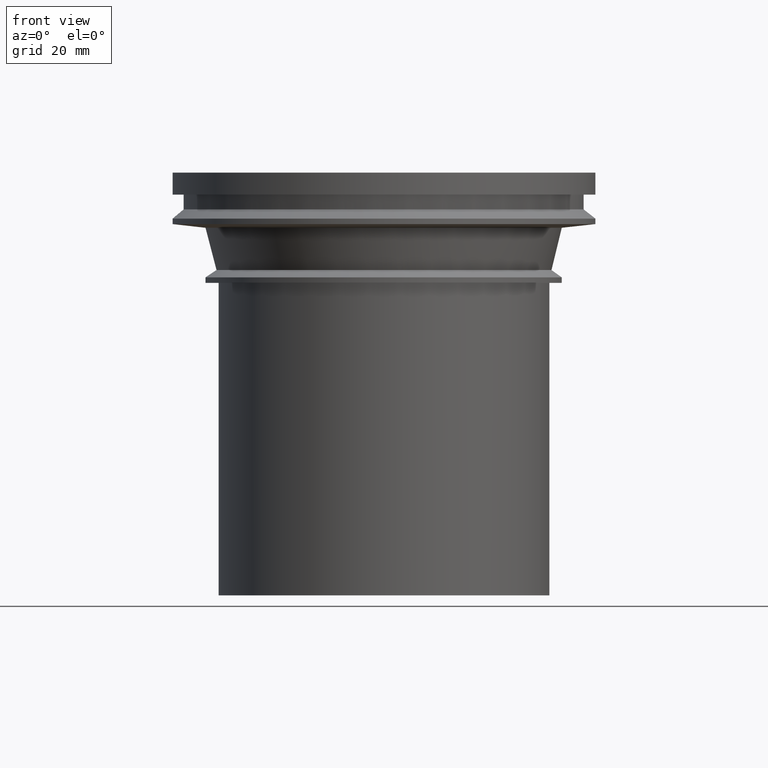
[diagram: clean part render]
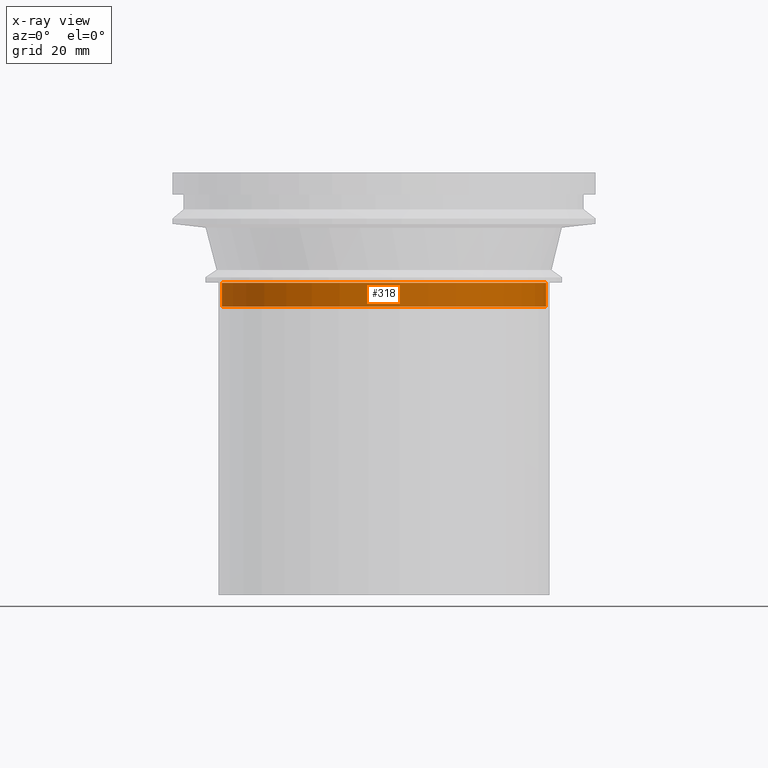
[diagram: x-ray — body ghosted, one internal face saturated and labeled with its STEP entity id]
A machine part, front view, then the same camera in x-ray: the body is ghosted and one INTERNAL B-rep face — a face not visible from any outside direction — is saturated and labeled: STEP entity #318.
In plain terms, the highlighted cylindrical surface (bore or boss wall) has radius 44.056 mm, axis along (0, 0, -1).
Its self-contained STEP definition (entity closure, byte-faithful):
#43=CYLINDRICAL_SURFACE('',#391,44.056);
#83=ORIENTED_EDGE('',*,*,#120,.T.);
#84=ORIENTED_EDGE('',*,*,#119,.F.);
#119=EDGE_CURVE('',#146,#146,#173,.T.);
#120=EDGE_CURVE('',#147,#147,#174,.T.);
#146=VERTEX_POINT('',#580);
#147=VERTEX_POINT('',#583);
#173=CIRCLE('',#390,44.056);
#174=CIRCLE('',#392,44.056);
#218=EDGE_LOOP('',(#83));
#219=EDGE_LOOP('',(#84));
#272=FACE_BOUND('',#218,.T.);
#273=FACE_BOUND('',#219,.T.);
#318=ADVANCED_FACE('',(#272,#273),#43,.T.);
#390=AXIS2_PLACEMENT_3D('',#579,#485,#486);
#391=AXIS2_PLACEMENT_3D('',#581,#487,#488);
#392=AXIS2_PLACEMENT_3D('',#582,#489,#490);
#485=DIRECTION('',(0.,0.,-1.));
#486=DIRECTION('',(-1.,0.,0.));
#487=DIRECTION('',(0.,0.,-1.));
#488=DIRECTION('',(-1.,0.,0.));
#489=DIRECTION('',(0.,0.,-1.));
#490=DIRECTION('',(-1.,0.,0.));
#579=CARTESIAN_POINT('',(0.,0.,-36.5));
#580=CARTESIAN_POINT('',(-44.056,0.,-36.5));
#581=CARTESIAN_POINT('',(0.,0.,-50.));
#582=CARTESIAN_POINT('',(0.,0.,-30.));
#583=CARTESIAN_POINT('',(-44.056,0.,-30.));